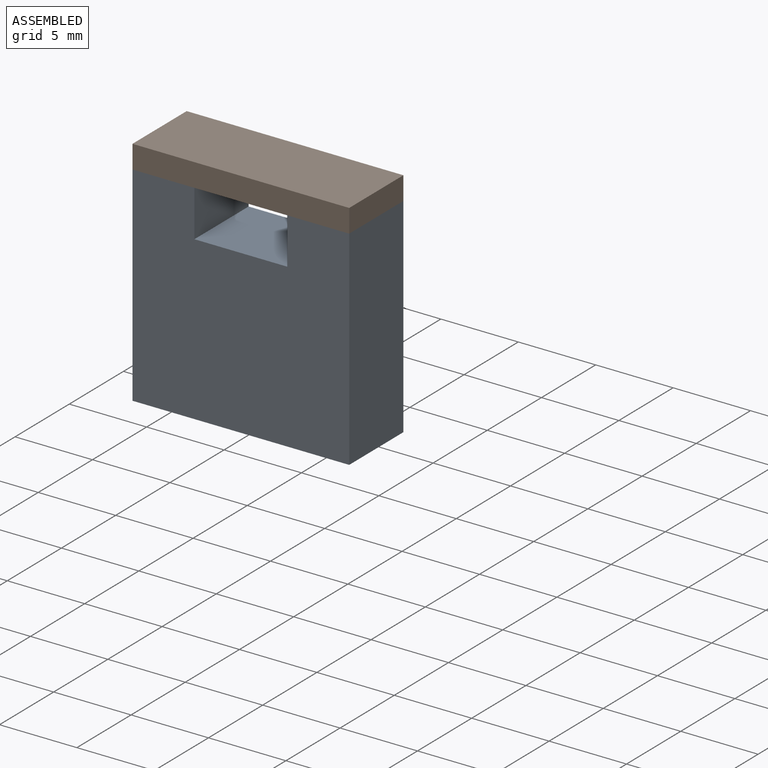
[diagram: assembled view]
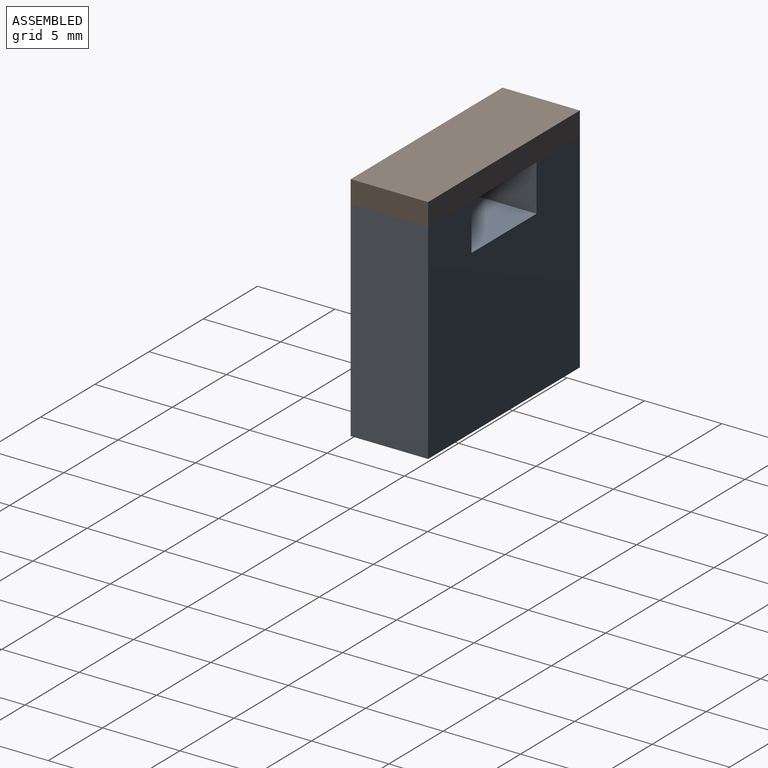
[diagram: assembled view, second angle]
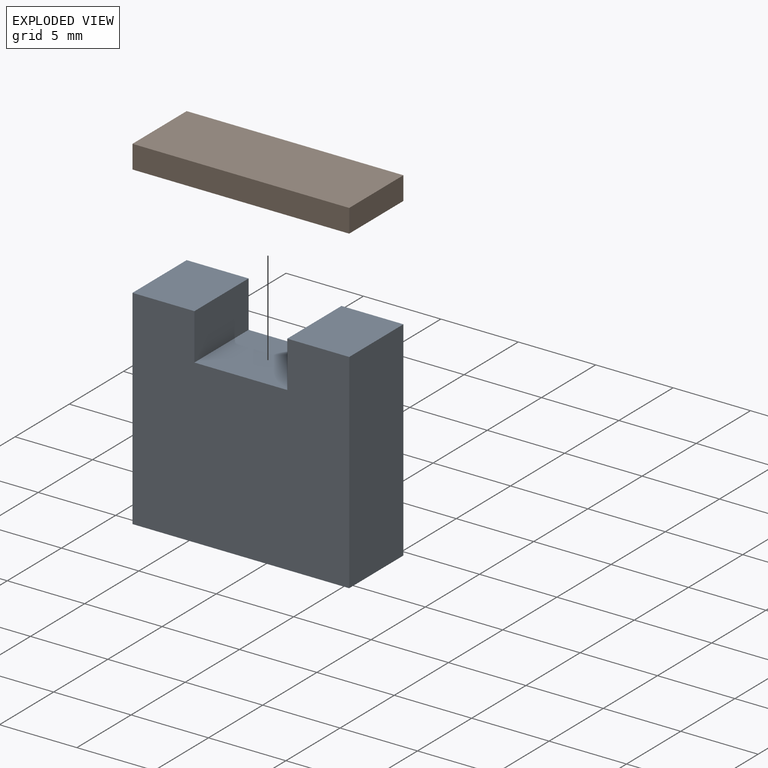
[diagram: exploded view]
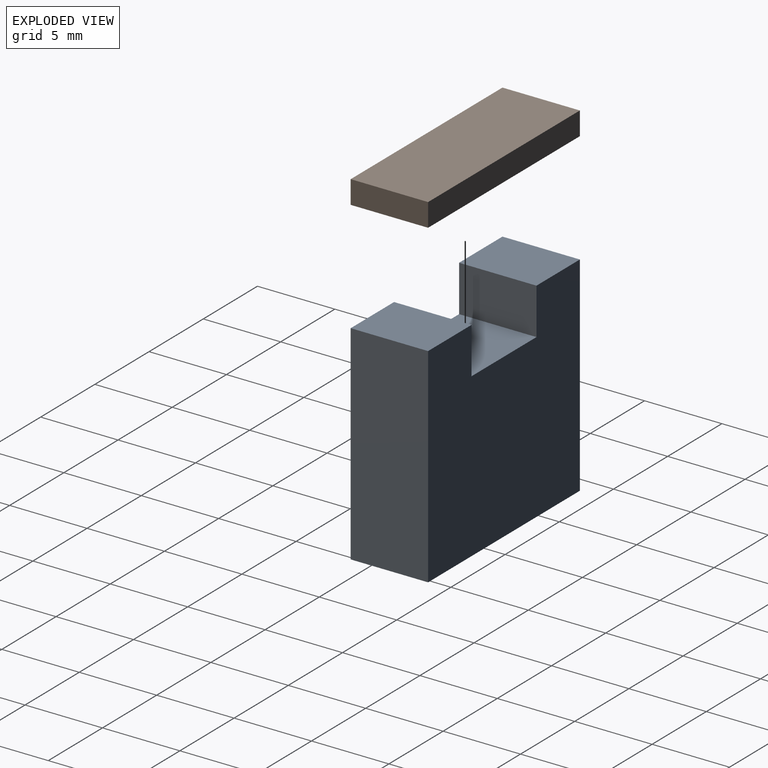
[diagram: exploded view, second angle]
ASSEMBLY  parts=2 mates=3
PART A: 10 faces, bbox 14x5x13.5 mm
  f0: plane 5x4mm, normal (0,0,1), area 20mm2, adj f1,f2,f3,f8
  f1: plane 14x13.5mm, normal (0,-1,0), area 171mm2, adj f0,f3,f4,f5,f6,f7,f8,f9
  f2: plane 14x13.5mm, normal (0,1,0), area 171mm2, adj f0,f3,f4,f5,f6,f7,f8,f9
  f3: plane 13.5x5mm, normal (-1,0,0), area 67.5mm2, adj f0,f1,f2,f5
  f4: plane 13.5x5mm, normal (1,0,0), area 67.5mm2, adj f1,f2,f5,f6
  f5: plane 14x5mm, normal (0,0,-1), area 70mm2, adj f1,f2,f3,f4
  f6: plane 5x4mm, normal (0,0,1), area 20mm2, adj f1,f2,f4,f7
  f7: plane 5x3mm, normal (-1,0,0), area 15mm2, adj f1,f2,f6,f9
  f8: plane 5x3mm, normal (1,0,0), area 15mm2, adj f0,f1,f2,f9
  f9: plane 6x5mm, normal (0,0,1), area 30mm2, adj f1,f2,f7,f8
PART B: 6 faces, bbox 14x5x1.5 mm
  f0: plane 14x1.5mm, normal (0,1,0), area 21mm2, adj f1,f3,f4,f5
  f1: plane 5x1.5mm, normal (-1,0,0), area 7.5mm2, adj f0,f2,f4,f5
  f2: plane 14x1.5mm, normal (0,-1,0), area 21mm2, adj f1,f3,f4,f5
  f3: plane 5x1.5mm, normal (1,0,0), area 7.5mm2, adj f0,f2,f4,f5
  f4: plane 14x5mm, normal (0,0,1), area 70mm2, adj f0,f1,f2,f3
  f5: plane 14x5mm, normal (0,0,-1), area 70mm2, adj f0,f1,f2,f3
PLACE A t=(10.88,-39.7,-10.83)mm
PLACE B t=(-28.71,-43.91,-10.83)mm
MATE planar B.f3 <-> A.f4  axis (1,0,0) through (-54.25,-8.44,-10.08)mm
MATE planar B.f2 <-> A.f1  axis (0,-1,0) through (-61.25,-10.94,-10.08)mm
MATE planar B.f5 <-> A.f0  axis (0,0,-1) through (-61.25,-8.44,-10.83)mm
